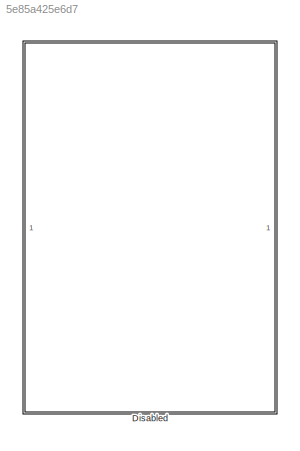
MODEL slx_5e85a425e6d7
KIND library
CONFIG AbsTol = auto
CONFIG EnableMultiTasking = off
CONFIG FixedStep = auto
CONFIG MaxStep = auto
CONFIG MinStep = auto
CONFIG RelTol = 1e-3
CONFIG SampleTimeConstraint = Unconstrained
CONFIG SolverName = VariableStepAuto
CONFIG StartTime = 0.0
CONFIG StopTime = 10.0
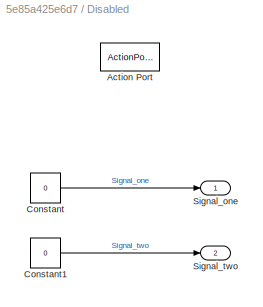
BLOCK [SubSystem] Disabled
  TreatAsAtomicUnit = on
BLOCK [ActionPort] Disabled/Action Port
BLOCK [Constant] Disabled/Constant
  Value = 0
BLOCK [Constant] Disabled/Constant1
  Value = 0
BLOCK [Outport] Disabled/Signal_one
BLOCK [Outport] Disabled/Signal_two
  Port = 2
LINE Disabled/Constant1:1 -> Disabled/Signal_two:1
LINE Disabled/Constant:1 -> Disabled/Signal_one:1
